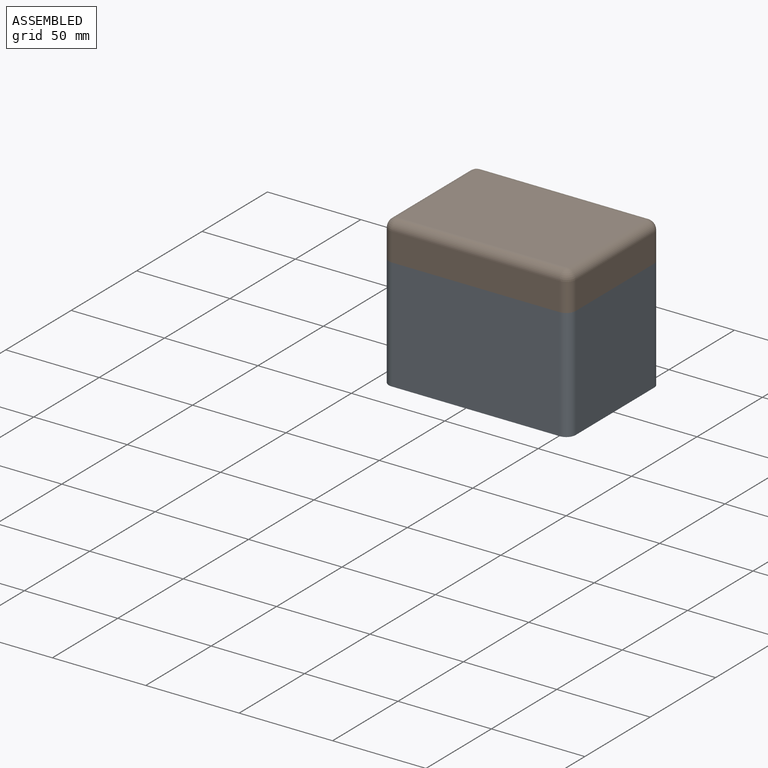
[diagram: assembled view]
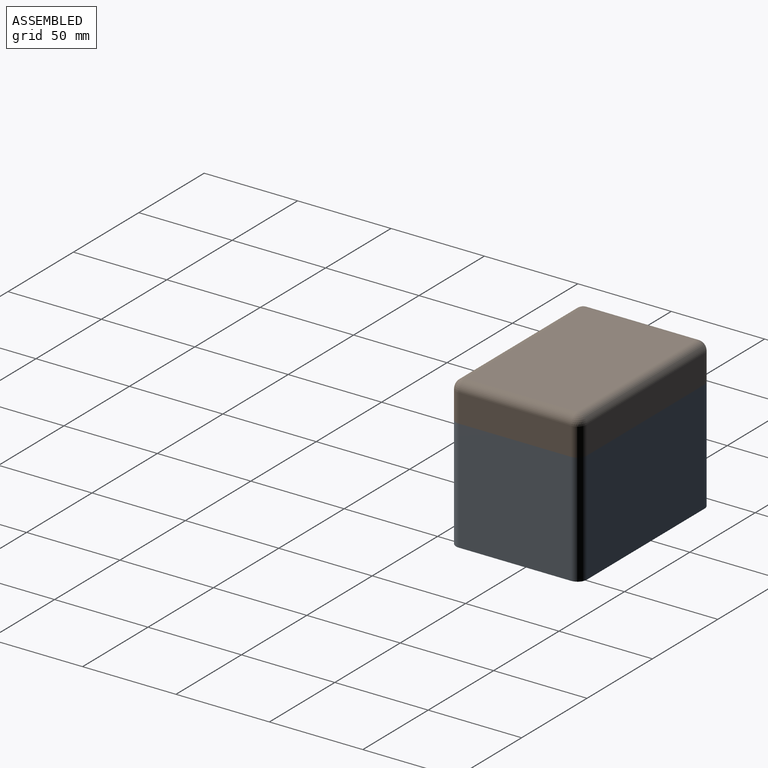
[diagram: assembled view, second angle]
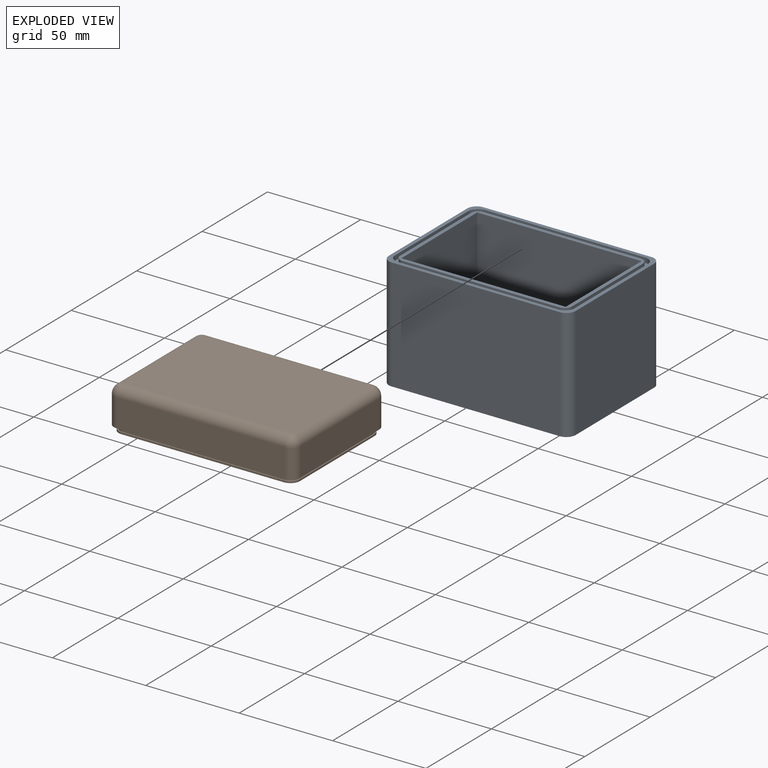
[diagram: exploded view]
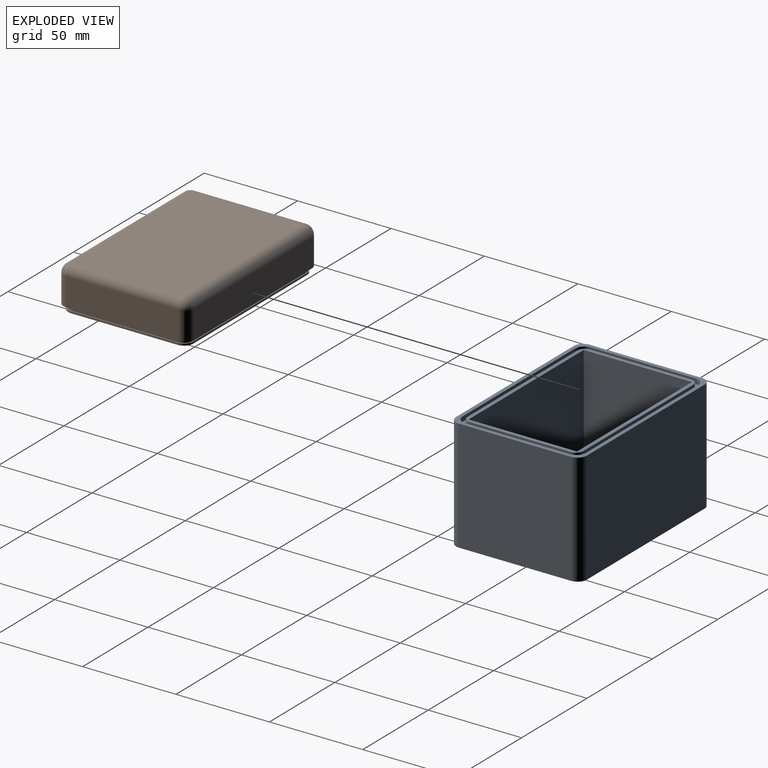
[diagram: exploded view, second angle]
ASSEMBLY  parts=2 mates=2
PART A: 51 faces, bbox 100x70x60 mm
  f0: plane 92x62mm, normal (0,0,1), area 586.3mm2, adj f1,f2,f3,f4,f6,f7,f8,f9
  f1: plane 88x54mm, normal (0,-1,0), area 4752mm2, adj f0,f2,f4,f5
  f2: plane 58x54mm, normal (1,0,0), area 3132mm2, adj f0,f1,f3,f5
  f3: plane 88x54mm, normal (0,1,0), area 4752mm2, adj f0,f2,f4,f5
  f4: plane 58x54mm, normal (-1,0,0), area 3132mm2, adj f0,f1,f3,f5
  f5: plane 88x58mm, normal (0,0,1), area 5104mm2, adj f1,f2,f3,f4
  f6: cylinder r=4mm len=4mm, axis (0,0,1), area 12.6mm2, adj f0,f7,f13,f14
  f7: plane 84x2mm, normal (0,-1,0), area 168mm2, adj f0,f6,f8,f14
  f8: cylinder r=4mm len=4mm, axis (0,0,1), area 12.6mm2, adj f0,f7,f9,f14
  f9: plane 54x2mm, normal (-1,0,0), area 108mm2, adj f0,f8,f10,f14
  f10: cylinder r=4mm len=4mm, axis (0,0,1), area 12.6mm2, adj f0,f9,f11,f14
  f11: plane 84x2mm, normal (0,1,0), area 168mm2, adj f0,f10,f12,f14
  f12: cylinder r=4mm len=4mm, axis (0,0,1), area 12.6mm2, adj f0,f11,f13,f14
  f13: plane 54x2mm, normal (1,0,0), area 108mm2, adj f0,f6,f12,f14
  f14: plane 92x62mm, normal (0,0,-1), area 153mm2, adj f6,f7,f8,f9,f10,f11,f12,f13
  f15: cylinder r=4mm len=4mm, axis (0,0,1), area 6.3mm2, adj f14,f16,f30,f31
  f16: plane 83x1mm, normal (0,-1,0), area 83mm2, adj f14,f15,f17,f31
  f17: cylinder r=4mm len=4mm, axis (0,0,1), area 6.3mm2, adj f14,f16,f18,f31
  f18: plane 53x1mm, normal (-1,0,0), area 53mm2, adj f14,f17,f19,f31
  f19: cylinder r=4mm len=4mm, axis (0,0,1), area 6.3mm2, adj f14,f18,f20,f31
  f20: plane 83x1mm, normal (0,1,0), area 83mm2, adj f14,f19,f21,f31
  f21: cylinder r=4mm len=4mm, axis (0,0,1), area 6.3mm2, adj f14,f20,f30,f31
  f22: plane 87x1mm, normal (0,-1,0), area 87mm2, adj f23,f29,f31,f32
  f23: cylinder r=5mm len=5mm, axis (0,0,1), area 7.9mm2, adj f22,f24,f31,f32
  f24: plane 57x1mm, normal (1,0,0), area 57mm2, adj f23,f25,f31,f32
  f25: cylinder r=5mm len=5mm, axis (0,0,1), area 7.9mm2, adj f24,f26,f31,f32
  f26: plane 87x1mm, normal (0,1,0), area 87mm2, adj f25,f27,f31,f32
  f27: cylinder r=5mm len=5mm, axis (0,0,1), area 7.9mm2, adj f26,f28,f31,f32
  f28: plane 57x1mm, normal (-1,0,0), area 57mm2, adj f27,f29,f31,f32
  f29: cylinder r=5mm len=5mm, axis (0,0,1), area 7.9mm2, adj f22,f28,f31,f32
  f30: plane 53x1mm, normal (1,0,0), area 53mm2, adj f14,f15,f21,f31
  f31: plane 97x67mm, normal (0,0,1), area 940.3mm2, adj f15,f16,f17,f18,f19,f20,f21,f22
  f32: plane 97x67mm, normal (0,0,-1), area 163mm2, adj f22,f23,f24,f25,f26,f27,f28,f29
  f33: plane 100x70mm, normal (0,0,-1), area 6978.5mm2, adj f34,f35,f36,f37,f47,f48,f49,f50
  f34: plane 60x60mm, normal (1,0,0), area 3600mm2, adj f33,f38,f49,f50
  f35: plane 90x60mm, normal (0,-1,0), area 5400mm2, adj f33,f38,f48,f49
  f36: plane 60x60mm, normal (-1,0,0), area 3600mm2, adj f33,f38,f47,f48
  f37: plane 90x60mm, normal (0,1,0), area 5400mm2, adj f33,f38,f47,f50
  f38: plane 100x70mm, normal (0,0,1), area 664mm2, adj f34,f35,f36,f37,f39,f40,f41,f42
  f39: cylinder r=5mm len=5mm, axis (0,0,1), area 15.7mm2, adj f32,f38,f40,f46
  f40: plane 56x2mm, normal (-1,0,0), area 112mm2, adj f32,f38,f39,f41
  f41: cylinder r=5mm len=5mm, axis (0,0,1), area 15.7mm2, adj f32,f38,f40,f42
  f42: plane 86x2mm, normal (0,1,0), area 172mm2, adj f32,f38,f41,f43
  f43: cylinder r=5mm len=5mm, axis (0,0,1), area 15.7mm2, adj f32,f38,f42,f44
  f44: plane 56x2mm, normal (1,0,0), area 112mm2, adj f32,f38,f43,f45
  f45: cylinder r=5mm len=5mm, axis (0,0,1), area 15.7mm2, adj f32,f38,f44,f46
  f46: plane 86x2mm, normal (0,-1,0), area 172mm2, adj f32,f38,f39,f45
  f47: cylinder r=5mm len=60mm, axis (0,0,1), area 471.2mm2, adj f33,f36,f37,f38
  f48: cylinder r=5mm len=60mm, axis (0,0,-1), area 471.2mm2, adj f33,f35,f36,f38
  f49: cylinder r=5mm len=60mm, axis (0,0,1), area 471.2mm2, adj f33,f34,f35,f38
  f50: cylinder r=5mm len=60mm, axis (0,0,-1), area 471.2mm2, adj f33,f34,f37,f38
PART B: 59 faces, bbox 100x70x23 mm
  f0: plane 90x15mm, normal (0,-1,0), area 1350mm2, adj f5,f8,f14,f17
  f1: plane 60x15mm, normal (1,0,0), area 900mm2, adj f5,f11,f15,f17
  f2: plane 90x15mm, normal (0,1,0), area 1350mm2, adj f5,f6,f10,f11
  f3: plane 60x15mm, normal (-1,0,0), area 900mm2, adj f5,f6,f8,f9
  f4: plane 90x60mm, normal (0,0,1), area 5400mm2, adj f9,f10,f14,f15
  f5: plane 100x70mm, normal (0,0,-1), area 664mm2, adj f0,f1,f2,f3,f6,f8,f11,f17
  f6: cylinder r=5mm len=15mm, axis (0,0,1), area 117.8mm2, adj f2,f3,f5,f7
  f7: sphere r=5mm, area 39.3mm2, adj f6,f9,f10
  f8: cylinder r=5mm len=15mm, axis (0,0,-1), area 117.8mm2, adj f0,f3,f5,f12
  f9: cylinder r=5mm len=60mm, axis (0,1,0), area 471.2mm2, adj f3,f4,f7,f12
  f10: cylinder r=5mm len=90mm, axis (1,0,0), area 706.9mm2, adj f2,f4,f7,f13
  f11: cylinder r=5mm len=15mm, axis (0,0,-1), area 117.8mm2, adj f1,f2,f5,f13
  f12: sphere r=5mm, area 39.3mm2, adj f8,f9,f14
  f13: sphere r=5mm, area 39.3mm2, adj f10,f11,f15
  f14: cylinder r=5mm len=90mm, axis (-1,0,0), area 706.9mm2, adj f0,f4,f12,f16
  f15: cylinder r=5mm len=60mm, axis (0,-1,0), area 471.2mm2, adj f1,f4,f13,f16
  f16: sphere r=5mm, area 39.3mm2, adj f14,f15,f17
  f17: cylinder r=5mm len=15mm, axis (0,0,1), area 117.8mm2, adj f0,f1,f5,f16
  f18: plane 86x2mm, normal (0,-1,0), area 172mm2, adj f5,f19,f25,f44
  f19: cylinder r=5mm len=5mm, axis (0,0,1), area 15.7mm2, adj f5,f18,f20,f44
  f20: plane 56x2mm, normal (-1,0,0), area 112mm2, adj f5,f19,f21,f44
  f21: cylinder r=5mm len=5mm, axis (0,0,1), area 15.7mm2, adj f5,f20,f22,f44
  f22: plane 86x2mm, normal (0,1,0), area 172mm2, adj f5,f21,f23,f44
  f23: cylinder r=5mm len=5mm, axis (0,0,1), area 15.7mm2, adj f5,f22,f24,f44
  f24: plane 56x2mm, normal (1,0,0), area 112mm2, adj f5,f23,f25,f44
  f25: cylinder r=5mm len=5mm, axis (0,0,1), area 15.7mm2, adj f5,f18,f24,f44
  f26: plane 92x62mm, normal (0,0,1), area 153mm2, adj f27,f28,f29,f30,f31,f32,f33,f42
  f27: cylinder r=4mm len=4mm, axis (0,0,1), area 6.3mm2, adj f26,f28,f42,f43
  f28: plane 83x1mm, normal (0,-1,0), area 83mm2, adj f26,f27,f29,f43
  f29: cylinder r=4mm len=4mm, axis (0,0,1), area 6.3mm2, adj f26,f28,f30,f43
  f30: plane 53x1mm, normal (1,0,0), area 53mm2, adj f26,f29,f31,f43
  f31: cylinder r=4mm len=4mm, axis (0,0,1), area 6.3mm2, adj f26,f30,f32,f43
  f32: plane 83x1mm, normal (0,1,0), area 83mm2, adj f26,f31,f33,f43
  f33: cylinder r=4mm len=4mm, axis (0,0,1), area 6.3mm2, adj f26,f32,f42,f43
  f34: plane 87x1mm, normal (0,-1,0), area 87mm2, adj f35,f41,f43,f44
  f35: cylinder r=5mm len=5mm, axis (0,0,1), area 7.9mm2, adj f34,f36,f43,f44
  f36: plane 57x1mm, normal (-1,0,0), area 57mm2, adj f35,f37,f43,f44
  f37: cylinder r=5mm len=5mm, axis (0,0,1), area 7.9mm2, adj f36,f38,f43,f44
  f38: plane 87x1mm, normal (0,1,0), area 87mm2, adj f37,f39,f43,f44
  f39: cylinder r=5mm len=5mm, axis (0,0,1), area 7.9mm2, adj f38,f40,f43,f44
  f40: plane 57x1mm, normal (1,0,0), area 57mm2, adj f39,f41,f43,f44
  f41: cylinder r=5mm len=5mm, axis (0,0,1), area 7.9mm2, adj f34,f40,f43,f44
  f42: plane 53x1mm, normal (-1,0,0), area 53mm2, adj f26,f27,f33,f43
  f43: plane 97x67mm, normal (0,0,-1), area 940.3mm2, adj f27,f28,f29,f30,f31,f32,f33,f34
  f44: plane 97x67mm, normal (0,0,1), area 163mm2, adj f18,f19,f20,f21,f22,f23,f24,f25
  f45: plane 88x58mm, normal (0,0,-1), area 5104mm2, adj f46,f47,f48,f49
  f46: plane 58x14mm, normal (1,0,0), area 812mm2, adj f45,f47,f49,f50
  f47: plane 88x14mm, normal (0,-1,0), area 1232mm2, adj f45,f46,f48,f50
  f48: plane 58x14mm, normal (-1,0,0), area 812mm2, adj f45,f47,f49,f50
  f49: plane 88x14mm, normal (0,1,0), area 1232mm2, adj f45,f46,f48,f50
  f50: plane 92x62mm, normal (0,0,-1), area 586.3mm2, adj f46,f47,f48,f49,f51,f52,f53,f54
  f51: plane 54x2mm, normal (-1,0,0), area 108mm2, adj f26,f50,f52,f58
  f52: cylinder r=4mm len=4mm, axis (0,0,1), area 12.6mm2, adj f26,f50,f51,f53
  f53: plane 84x2mm, normal (0,1,0), area 168mm2, adj f26,f50,f52,f54
  f54: cylinder r=4mm len=4mm, axis (0,0,1), area 12.6mm2, adj f26,f50,f53,f55
  f55: plane 54x2mm, normal (1,0,0), area 108mm2, adj f26,f50,f54,f56
  f56: cylinder r=4mm len=4mm, axis (0,0,1), area 12.6mm2, adj f26,f50,f55,f57
  f57: plane 84x2mm, normal (0,-1,0), area 168mm2, adj f26,f50,f56,f58
  f58: cylinder r=4mm len=4mm, axis (0,0,1), area 12.6mm2, adj f26,f50,f51,f57
PLACE A t=(8.1,-2.92,-2.66)mm fixed
PLACE B t=(8.1,-2.92,57.34)mm
MATE planar B.f0 <-> A.f35  axis (0,-1,0) through (8.1,-37.92,64.84)mm
MATE planar A.f36 <-> B.f3  axis (-1,0,0) through (-41.9,-2.92,27.34)mm
